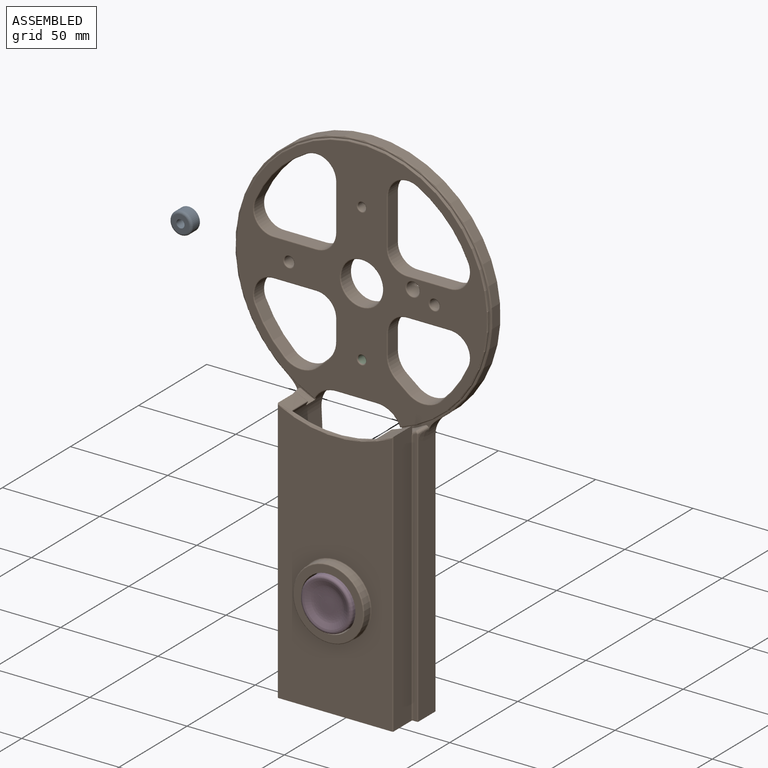
[diagram: assembled view]
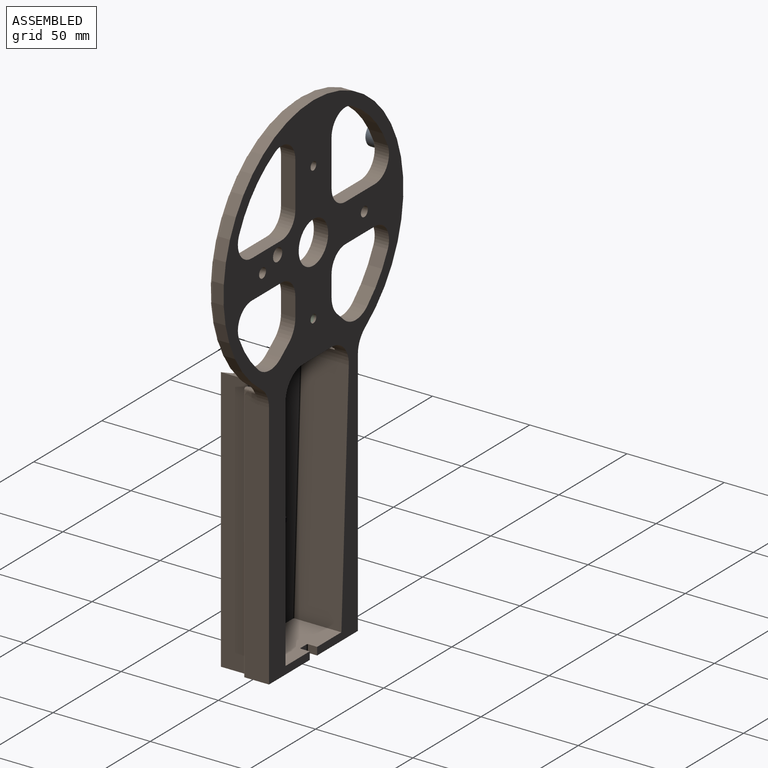
[diagram: assembled view, second angle]
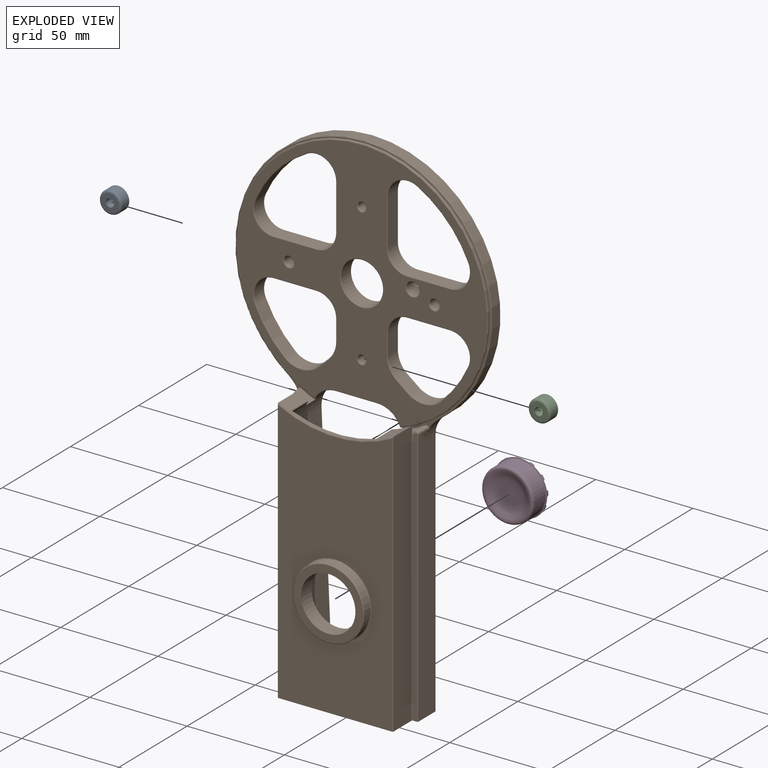
[diagram: exploded view]
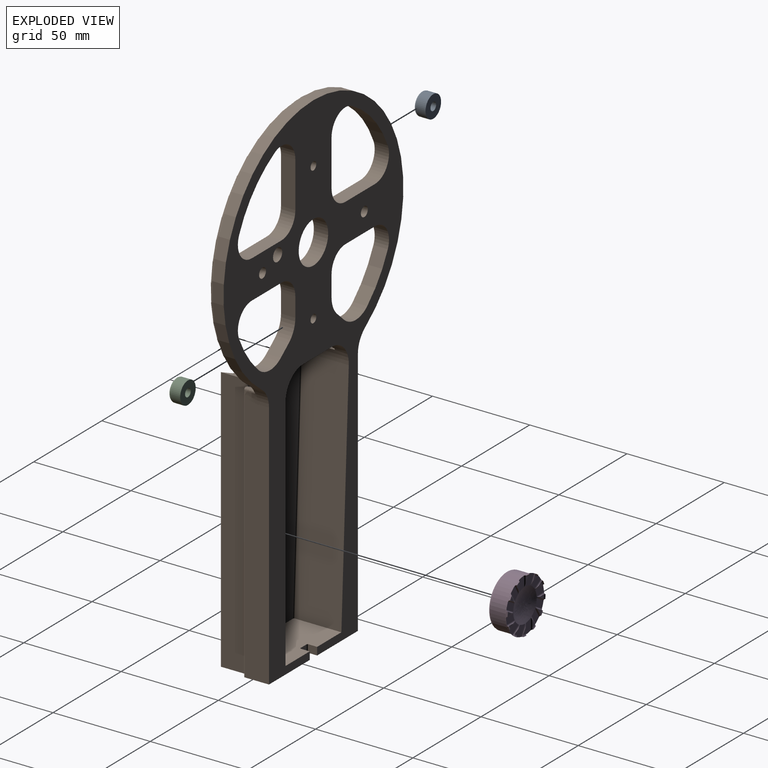
[diagram: exploded view, second angle]
ASSEMBLY  parts=4 mates=3
PART A: 5 faces, bbox 12.4x6.1x12.4 mm
  f0: cylinder r=2.1mm len=6.1mm, axis (0,1,0), area 80.3mm2, adj f2,f3
  f1: cylinder r=5.71mm len=11.43mm, axis (0,1,0), area 173.3mm2, adj f3,f4
  f2: plane 8.89x8.89mm, normal (0,-1,0), area 48.3mm2, adj f0,f4
  f3: plane 11.43x11.43mm, normal (0,1,0), area 88.8mm2, adj f0,f1
  f4: torus R=4.45mm, axis (0,-1,0), area 65.8mm2, adj f1,f2
PART B: 146 faces, bbox 143.3x32.5x264.9 mm
  f0: bspline ~10.99x7.91mm, area 2.4mm2, adj f93,f133,f135
  f1: bspline ~18.82x13.73mm, area 0.8mm2, adj f60,f82,f129
  f2: plane 65.28x27.05mm, normal (0,0,-1), area 1655.2mm2, adj f7,f12,f47,f48,f55,f56,f57,f58
  f3: plane 128.78x125.61mm, normal (0,-1,0), area 6411.4mm2, adj f83,f84,f85,f86,f94,f95,f96,f97
  f4: cylinder r=66.04mm len=132.08mm, axis (0,1,0), area 1950.6mm2, adj f48,f82,f128,f131
  f5: cylinder r=12.7mm len=24mm, axis (0,1,0), area 223.1mm2, adj f10,f11,f48,f51,f53,f59,f60,f74
  f6: cylinder r=12.7mm len=24mm, axis (0,1,0), area 267.6mm2, adj f8,f48,f49,f53,f54,f59,f60,f69
  f7: plane 136.07x58.37mm, normal (0,-1,0), area 6554.8mm2, adj f2,f78,f90,f91,f92
  f8: plane 6.21x4.86mm, normal (0,1,0), area 12.5mm2, adj f6,f49,f56,f67,f69,f145
  f9: cylinder r=63.5mm len=59.39mm, axis (0,1,0), area 292.6mm2, adj f56,f58,f67,f69,f71,f73,f75,f76
  f10: cylinder r=66.04mm len=11.81mm, axis (0,1,0), area 78.1mm2, adj f5,f11,f60,f134,f135,f138,f139
  f11: plane 10.75x6.6mm, normal (0,1,0), area 22.6mm2, adj f5,f10,f58,f76,f77,f139
  f12: plane 130.85x12.45mm, normal (-1,0,0), area 1606mm2, adj f2,f48,f89,f128,f129
  f13: cylinder r=10.16mm len=14.97mm, axis (0,1,0), area 149.1mm2, adj f14,f37,f48,f103
  f14: plane 23.63x7.11mm, normal (-1,0,0), area 168.1mm2, adj f13,f15,f48,f101
  f15: cylinder r=10.16mm len=10.16mm, axis (0,1,0), area 113.5mm2, adj f14,f16,f48,f100
  f16: plane 21.86x7.11mm, normal (0,0,1), area 155.5mm2, adj f15,f17,f48,f102
  f17: cylinder r=10.16mm len=14.26mm, axis (0,1,0), area 143.5mm2, adj f16,f37,f48,f104
  f18: cylinder r=10.16mm len=10.16mm, axis (0,1,0), area 113.5mm2, adj f19,f38,f48,f110
  f19: plane 23.63x7.11mm, normal (1,0,0), area 168.1mm2, adj f18,f20,f48,f108
  f20: cylinder r=10.16mm len=14.97mm, axis (0,1,0), area 149.1mm2, adj f19,f21,f48,f106
  f21: cylinder r=59.69mm len=28.48mm, axis (0,1,0), area 281.1mm2, adj f20,f22,f48,f107
  f22: cylinder r=10.16mm len=14.26mm, axis (0,1,0), area 143.5mm2, adj f21,f38,f48,f109
  f23: cylinder r=59.69mm len=19.85mm, axis (0,1,0), area 174.9mm2, adj f24,f39,f48,f117
  f24: cylinder r=12.7mm len=16.45mm, axis (0,1,0), area 127.3mm2, adj f23,f25,f48,f115
  f25: plane 7.11x5.81mm, normal (0.62,0,0.79), area 52.6mm2, adj f24,f26,f48,f113
  f26: cylinder r=12.7mm len=9.98mm, axis (0,1,0), area 81.7mm2, adj f25,f27,f48,f112
  f27: plane 10.03x7.11mm, normal (1,0,0), area 71.4mm2, adj f26,f28,f48,f114
  f28: cylinder r=10.16mm len=10.16mm, axis (0,1,0), area 113.5mm2, adj f27,f29,f48,f116
  f29: plane 21.86x7.11mm, normal (0,0,-1), area 155.5mm2, adj f28,f39,f48,f118
  f30: cylinder r=12.7mm len=9.37mm, axis (0,1,0), area 75mm2, adj f31,f40,f48,f126
  f31: plane 7.11x5.08mm, normal (-0.67,0,0.74), area 49mm2, adj f30,f32,f48,f124
  f32: cylinder r=12.7mm len=16.97mm, axis (0,1,0), area 132.2mm2, adj f31,f33,f48,f122
  f33: cylinder r=59.69mm len=20.68mm, axis (0,1,0), area 183.7mm2, adj f32,f34,f48,f120
  f34: cylinder r=10.16mm len=14.26mm, axis (0,1,0), area 143.5mm2, adj f33,f35,f48,f121
  f35: plane 21.86x7.11mm, normal (0,0,-1), area 155.5mm2, adj f34,f36,f48,f123
  f36: cylinder r=10.16mm len=10.16mm, axis (0,1,0), area 113.5mm2, adj f35,f40,f48,f125
  f37: cylinder r=59.69mm len=28.48mm, axis (0,1,0), area 281.1mm2, adj f13,f17,f48,f105
  f38: plane 21.86x7.11mm, normal (0,0,1), area 155.5mm2, adj f18,f22,f48,f111
  f39: cylinder r=10.16mm len=14.26mm, axis (0,1,0), area 143.5mm2, adj f23,f29,f48,f119
  f40: plane 10.61x7.11mm, normal (-1,0,0), area 75.4mm2, adj f30,f36,f48,f127
  f41: cylinder r=10.82mm len=21.64mm, axis (0,1,0), area 483.6mm2, adj f48,f99
  f42: cylinder r=2.1mm len=7.11mm, axis (0,1,0), area 93.6mm2, adj f48,f98
  f43: cylinder r=2.1mm len=7.11mm, axis (0,1,0), area 93.6mm2, adj f48,f97
  f44: cylinder r=2.54mm len=7.11mm, axis (0,1,0), area 113.5mm2, adj f48,f96
  f45: cylinder r=2.54mm len=7.11mm, axis (0,1,0), area 113.5mm2, adj f48,f95
  f46: cylinder r=3.37mm len=7.11mm, axis (0,1,0), area 150.4mm2, adj f48,f94
  f47: plane 130.85x12.45mm, normal (1,0,0), area 1606mm2, adj f2,f48,f93,f131,f133
  f48: plane 259.08x132.08mm, normal (0,1,0), area 10411.9mm2, adj f2,f4,f5,f6,f12,f13,f14,f15
  f49: cylinder r=66.04mm len=6.99mm, axis (0,1,0), area 44.3mm2, adj f6,f8,f60,f140,f142,f144,f145
  f50: plane 129.46x45.49mm, normal (0,1,0), area 4799.2mm2, adj f52,f64,f68,f70,f72,f73,f74
  f51: plane 122.59x24mm, normal (-1,0,0), area 2942.6mm2, adj f5,f48,f52,f72
  f52: plane 41.07x24.52mm, normal (0,0,1), area 978.7mm2, adj f48,f50,f51,f54,f61,f62,f63,f68
  f53: plane 21.11x7.11mm, normal (0,0,-1), area 150.1mm2, adj f5,f6,f48,f83
  f54: plane 122.05x24mm, normal (1,0,0.04), area 2932.5mm2, adj f6,f48,f52,f68
  f55: plane 133.85x1.93mm, normal (0,-1,0), area 257.5mm2, adj f2,f88,f89,f141,f144
  f56: plane 137.05x13.73mm, normal (-1,0,0), area 1793.1mm2, adj f2,f8,f9,f67,f88,f92,f145
  f57: plane 133.85x1.93mm, normal (0,-1,0), area 257.5mm2, adj f2,f87,f93,f136,f138
  f58: plane 137.05x13.73mm, normal (1,0,0), area 1793.1mm2, adj f2,f9,f11,f76,f87,f90,f139
  f59: cylinder r=64.9mm len=129.79mm, axis (0,-1,0), area 276.5mm2, adj f5,f6,f60,f86
  f60: plane 131.24x128.64mm, normal (0,-1,0), area 259mm2, adj f1,f5,f6,f10,f49,f59,f82,f129
  f61: plane 4.57x3.99mm, normal (1,0,0), area 18.2mm2, adj f2,f48,f52,f80
  f62: plane 4.57x3.99mm, normal (-1,0,0), area 18.2mm2, adj f2,f48,f52,f81
  f63: plane 4.44x3.99mm, normal (0,1,0), area 17.7mm2, adj f2,f52,f80,f81
  f64: cylinder r=13.97mm len=27.94mm, axis (0,-1,0), area 668.9mm2, adj f50,f66
  f65: cylinder r=18.3mm len=36.6mm, axis (0,1,0), area 467.3mm2, adj f78,f79
  f66: plane 35.58x35.58mm, normal (0,-1,0), area 381.3mm2, adj f64,f79
  f67: torus R=64.01mm, axis (0,-1,0), area 5mm2, adj f8,f9,f56,f69
  f68: cylinder r=0.51mm len=122.1mm, axis (0.04,0,-1), area 97.5mm2, adj f50,f52,f54,f70
  f69: cylinder r=0.51mm len=11.05mm, axis (0,-1,0), area 9.7mm2, adj f6,f8,f9,f67,f71
  f70: torus R=12.19mm, axis (0,-1,0), area 6.3mm2, adj f6,f50,f68,f71
  f71: bspline ~1.21x1.19mm, area 0.9mm2, adj f9,f69,f70,f73
  f72: cylinder r=0.51mm len=122.59mm, axis (0,0,1), area 97.8mm2, adj f50,f51,f52,f74
  f73: torus R=64.01mm, axis (0,-1,0), area 34.2mm2, adj f9,f50,f71,f75
  f74: torus R=12.19mm, axis (0,-1,0), area 4.4mm2, adj f5,f50,f72,f75
  f75: bspline ~1.24x1.13mm, area 0.9mm2, adj f9,f73,f74,f77
  f76: torus R=64.01mm, axis (0,-1,0), area 8.8mm2, adj f9,f11,f58,f77
  f77: cylinder r=0.51mm len=11.05mm, axis (0,1,0), area 9.4mm2, adj f5,f9,f11,f75,f76
  f78: torus R=18.81mm, axis (0,-1,0), area 92.7mm2, adj f7,f65
  f79: torus R=17.79mm, axis (0,-1,0), area 90.8mm2, adj f65,f66
  f80: cylinder r=0.51mm len=3.99mm, axis (0,0,1), area 3.2mm2, adj f2,f52,f61,f63
  f81: cylinder r=0.51mm len=3.99mm, axis (0,0,-1), area 3.2mm2, adj f2,f52,f62,f63
  f82: torus R=65.53mm, axis (0,-1,0), area 261.6mm2, adj f1,f4,f60,f129,f132,f133
  f83: cylinder r=0.51mm len=21.11mm, axis (1,0,0), area 16.8mm2, adj f3,f53,f84,f85
  f84: torus R=13.21mm, axis (0,-1,0), area 12.1mm2, adj f3,f5,f83,f86
  f85: torus R=13.21mm, axis (0,-1,0), area 10.7mm2, adj f3,f6,f83,f86
  f86: torus R=64.39mm, axis (0,-1,0), area 288.4mm2, adj f3,f59,f84,f85
  f87: cylinder r=0.51mm len=132.89mm, axis (0,0,1), area 105.7mm2, adj f2,f57,f58,f139
  f88: cylinder r=0.51mm len=132.89mm, axis (0,0,-1), area 105.7mm2, adj f2,f55,f56,f145
  f89: cylinder r=0.51mm len=133.5mm, axis (0,0,-1), area 106.4mm2, adj f2,f12,f55,f130,f141
  f90: cylinder r=0.51mm len=136.91mm, axis (0,0,1), area 108.9mm2, adj f2,f7,f58,f91
  f91: torus R=64.01mm, axis (0,-1,0), area 48.8mm2, adj f7,f9,f90,f92
  f92: cylinder r=0.51mm len=136.91mm, axis (0,0,-1), area 108.9mm2, adj f2,f7,f56,f91
  f93: cylinder r=0.51mm len=133.5mm, axis (0,0,1), area 106.4mm2, adj f0,f2,f47,f57,f136
  f94: torus R=3.87mm, axis (0,-1,0), area 17.8mm2, adj f3,f46
  f95: torus R=3.05mm, axis (0,-1,0), area 13.7mm2, adj f3,f45
  f96: torus R=3.05mm, axis (0,-1,0), area 13.7mm2, adj f3,f44
  f97: torus R=2.6mm, axis (0,-1,0), area 11.4mm2, adj f3,f43
  f98: torus R=2.6mm, axis (0,-1,0), area 11.4mm2, adj f3,f42
  f99: torus R=11.33mm, axis (0,-1,0), area 55.2mm2, adj f3,f41
  f100: torus R=10.67mm, axis (0,-1,0), area 13mm2, adj f3,f15,f101,f102
  f101: cylinder r=0.51mm len=23.63mm, axis (0,0,1), area 18.9mm2, adj f3,f14,f100,f103
  f102: cylinder r=0.51mm len=21.86mm, axis (1,0,0), area 17.4mm2, adj f3,f16,f100,f104
  f103: torus R=10.67mm, axis (0,-1,0), area 17mm2, adj f3,f13,f101,f105
  f104: torus R=10.67mm, axis (0,-1,0), area 16.4mm2, adj f3,f17,f102,f105
  f105: torus R=60.2mm, axis (0,-1,0), area 31.6mm2, adj f3,f37,f103,f104
  f106: torus R=10.67mm, axis (0,-1,0), area 17mm2, adj f3,f20,f107,f108
  f107: torus R=60.2mm, axis (0,-1,0), area 31.6mm2, adj f3,f21,f106,f109
  f108: cylinder r=0.51mm len=23.63mm, axis (0,0,-1), area 18.9mm2, adj f3,f19,f106,f110
  f109: torus R=10.67mm, axis (0,-1,0), area 16.4mm2, adj f3,f22,f107,f111
  f110: torus R=10.67mm, axis (0,-1,0), area 13mm2, adj f3,f18,f108,f111
  f111: cylinder r=0.51mm len=21.86mm, axis (1,0,0), area 17.4mm2, adj f3,f38,f109,f110
  f112: torus R=13.21mm, axis (0,-1,0), area 9.3mm2, adj f3,f26,f113,f114
  f113: cylinder r=0.51mm len=6.12mm, axis (0.79,0,-0.62), area 5.9mm2, adj f3,f25,f112,f115
  f114: cylinder r=0.51mm len=10.03mm, axis (0,0,-1), area 8mm2, adj f3,f27,f112,f116
  f115: torus R=13.21mm, axis (0,-1,0), area 14.5mm2, adj f3,f24,f113,f117
  f116: torus R=10.67mm, axis (0,-1,0), area 13mm2, adj f3,f28,f114,f118
  f117: torus R=60.2mm, axis (0,-1,0), area 19.7mm2, adj f3,f23,f115,f119
  f118: cylinder r=0.51mm len=21.86mm, axis (-1,0,0), area 17.4mm2, adj f3,f29,f116,f119
  f119: torus R=10.67mm, axis (0,-1,0), area 16.4mm2, adj f3,f39,f117,f118
  f120: torus R=60.2mm, axis (0,-1,0), area 20.7mm2, adj f3,f33,f121,f122
  f121: torus R=10.67mm, axis (0,-1,0), area 16.4mm2, adj f3,f34,f120,f123
  f122: torus R=13.21mm, axis (0,-1,0), area 15mm2, adj f3,f32,f120,f124
  f123: cylinder r=0.51mm len=21.86mm, axis (-1,0,0), area 17.4mm2, adj f3,f35,f121,f125
  f124: cylinder r=0.51mm len=5.43mm, axis (0.74,0,0.67), area 5.5mm2, adj f3,f31,f122,f126
  f125: torus R=10.67mm, axis (0,-1,0), area 13mm2, adj f3,f36,f123,f127
  f126: torus R=13.21mm, axis (0,-1,0), area 8.5mm2, adj f3,f30,f124,f127
  f127: cylinder r=0.51mm len=10.61mm, axis (0,0,1), area 8.5mm2, adj f3,f40,f125,f126
  f128: cylinder r=12.7mm len=10.38mm, axis (0,1,0), area 71mm2, adj f4,f12,f48,f129
  f129: bspline ~11.32x8.76mm, area 29.3mm2, adj f1,f12,f60,f82,f128,f130,f140
  f130: bspline ~10.99x7.91mm, area 2.4mm2, adj f89,f129,f142
  f131: cylinder r=12.7mm len=10.38mm, axis (0,1,0), area 71mm2, adj f4,f47,f48,f133
  f132: bspline ~18.1x13.41mm, area 0.8mm2, adj f60,f82,f133
  f133: bspline ~11.32x8.76mm, area 29.3mm2, adj f0,f47,f60,f82,f131,f132,f134
  f134: bspline ~5.5x3.91mm, area 12.8mm2, adj f10,f60,f133,f135
  f135: bspline ~2.99x2.84mm, area 4.9mm2, adj f0,f10,f134,f136,f137
  f136: bspline ~0.94x0.61mm, area 0.3mm2, adj f57,f93,f135,f137
  f137: bspline ~1.54x1.27mm, area 0.6mm2, adj f135,f136,f138
  f138: torus R=67.31mm, axis (0,-1,0), area 3.5mm2, adj f10,f57,f137,f139
  f139: bspline ~2.39x2.12mm, area 2.3mm2, adj f10,f11,f58,f87,f138
  f140: bspline ~6.99x4.14mm, area 12.8mm2, adj f49,f60,f129,f142
  f141: bspline ~0.94x0.61mm, area 0.3mm2, adj f55,f89,f142,f143
  f142: bspline ~3x2.86mm, area 4.9mm2, adj f49,f130,f140,f141,f143
  f143: bspline ~1.64x1.27mm, area 0.6mm2, adj f141,f142,f144
  f144: torus R=67.31mm, axis (0,-1,0), area 3.5mm2, adj f49,f55,f143,f145
  f145: bspline ~2.39x2.12mm, area 2.3mm2, adj f8,f49,f56,f88,f144
PART C: same geometry as A
PART D: 68 faces, bbox 30.3x10.5x30.3 mm
  f0: torus R=13.72mm, axis (0,1,0), area 34.6mm2, adj f1,f8,f9,f11,f12,f13,f15,f17
  f1: cylinder r=13.97mm len=3.38mm, axis (0,1,0), area 2.1mm2, adj f0,f3,f12,f67
  f2: revolved ~27.88x27.88mm, area 310mm2, adj f3,f9,f10,f11,f12,f13,f14,f15
  f3: revolved ~5x3.7mm, area 5.5mm2, adj f1,f2,f12
  f4: revolved ~23.89x23.89mm, area 468.1mm2, adj f5
  f5: torus R=12.07mm, axis (0,1,0), area 169.1mm2, adj f4,f6
  f6: cylinder r=13.34mm len=26.68mm, axis (0,1,0), area 660mm2, adj f5,f7
  f7: torus R=13.6mm, axis (0,1,0), area 33.7mm2, adj f6,f8
  f8: plane 27.43x27.43mm, normal (0,1,0), area 10.4mm2, adj f0,f7
  f9: cylinder r=13.97mm len=3.73mm, axis (0,1,0), area 2.1mm2, adj f0,f2,f13,f18
  f10: plane 0.61x0.21mm, normal (0,0,1), area 0mm2, adj f2,f18
  f11: plane 6.39x3.31mm, normal (0,-1,0), area 18.3mm2, adj f0,f2,f12,f13
  f12: cylinder r=0.81mm len=5.79mm, axis (1,0,0), area 4.8mm2, adj f0,f1,f2,f3,f11,f14
  f13: cylinder r=0.81mm len=5.4mm, axis (1,0,0), area 4.4mm2, adj f0,f2,f9,f11
  f14: plane 0.54x0.32mm, normal (-0.5,0,0.87), area 0mm2, adj f2,f12
  f15: cylinder r=13.97mm len=3.07mm, axis (0,1,0), area 2.1mm2, adj f0,f2,f19,f23
  f16: plane 0.54x0.32mm, normal (0.5,0,0.87), area 0mm2, adj f2,f23
  f17: plane 6.06x5.79mm, normal (0,-1,0), area 18.3mm2, adj f0,f2,f18,f19
  f18: cylinder r=0.81mm len=5.42mm, axis (0.87,0,-0.5), area 4.8mm2, adj f0,f2,f9,f10,f17
  f19: cylinder r=0.81mm len=5.08mm, axis (0.87,0,-0.5), area 4.4mm2, adj f0,f2,f15,f17
  f20: cylinder r=13.97mm len=3.38mm, axis (0,1,0), area 2.1mm2, adj f0,f2,f24,f28
  f21: plane 0.54x0.32mm, normal (0.87,0,0.5), area 0mm2, adj f2,f28
  f22: plane 7.18x5.26mm, normal (0,-1,0), area 18.3mm2, adj f0,f2,f23,f24
  f23: cylinder r=0.81mm len=5.42mm, axis (0.5,0,-0.87), area 4.8mm2, adj f0,f2,f15,f16,f22
  f24: cylinder r=0.81mm len=5.08mm, axis (0.5,0,-0.87), area 4.4mm2, adj f0,f2,f20,f22
  f25: cylinder r=13.97mm len=3.73mm, axis (0,1,0), area 2.1mm2, adj f0,f2,f29,f33
  f26: plane 0.61x0.21mm, normal (1,0,0), area 0mm2, adj f2,f33
  f27: plane 6.39x3.31mm, normal (0,-1,0), area 18.3mm2, adj f0,f2,f28,f29
  f28: cylinder r=0.81mm len=5.79mm, axis (0,0,-1), area 4.8mm2, adj f0,f2,f20,f21,f27
  f29: cylinder r=0.81mm len=5.4mm, axis (0,0,-1), area 4.4mm2, adj f0,f2,f25,f27
  f30: cylinder r=13.97mm len=3.07mm, axis (0,1,0), area 2.1mm2, adj f0,f2,f34,f38
  f31: plane 0.54x0.32mm, normal (0.87,0,-0.5), area 0mm2, adj f2,f38
  f32: plane 6.06x5.79mm, normal (0,-1,0), area 18.3mm2, adj f0,f2,f33,f34
  f33: cylinder r=0.81mm len=5.42mm, axis (-0.5,0,-0.87), area 4.8mm2, adj f0,f2,f25,f26,f32
  f34: cylinder r=0.81mm len=5.08mm, axis (-0.5,0,-0.87), area 4.4mm2, adj f0,f2,f30,f32
  f35: plane 0.54x0.32mm, normal (0.5,0,-0.87), area 0mm2, adj f2,f43
  f36: cylinder r=13.97mm len=3.38mm, axis (0,1,0), area 2.1mm2, adj f0,f2,f39,f43
  f37: plane 7.18x5.26mm, normal (0,-1,0), area 18.3mm2, adj f0,f2,f38,f39
  f38: cylinder r=0.81mm len=5.42mm, axis (-0.87,0,-0.5), area 4.8mm2, adj f0,f2,f30,f31,f37
  f39: cylinder r=0.81mm len=5.08mm, axis (-0.87,0,-0.5), area 4.4mm2, adj f0,f2,f36,f37
  f40: cylinder r=13.97mm len=3.73mm, axis (0,1,0), area 2.1mm2, adj f0,f2,f44,f48
  f41: plane 0.61x0.21mm, normal (0,0,-1), area 0mm2, adj f2,f48
  f42: plane 6.39x3.31mm, normal (0,-1,0), area 18.3mm2, adj f0,f2,f43,f44
  f43: cylinder r=0.81mm len=5.79mm, axis (-1,0,0), area 4.8mm2, adj f0,f2,f35,f36,f42
  f44: cylinder r=0.81mm len=5.4mm, axis (-1,0,0), area 4.4mm2, adj f0,f2,f40,f42
  f45: cylinder r=13.97mm len=3.07mm, axis (0,1,0), area 2.1mm2, adj f0,f2,f49,f53
  f46: plane 0.54x0.32mm, normal (-0.5,0,-0.87), area 0mm2, adj f2,f53
  f47: plane 6.06x5.79mm, normal (0,-1,0), area 18.3mm2, adj f0,f2,f48,f49
  f48: cylinder r=0.81mm len=5.42mm, axis (-0.87,0,0.5), area 4.8mm2, adj f0,f2,f40,f41,f47
  f49: cylinder r=0.81mm len=5.08mm, axis (-0.87,0,0.5), area 4.4mm2, adj f0,f2,f45,f47
  f50: cylinder r=13.97mm len=3.38mm, axis (0,1,0), area 2.1mm2, adj f0,f2,f54,f58
  f51: plane 0.54x0.32mm, normal (-0.87,0,-0.5), area 0mm2, adj f2,f58
  f52: plane 7.18x5.26mm, normal (0,-1,0), area 18.3mm2, adj f0,f2,f53,f54
  f53: cylinder r=0.81mm len=5.42mm, axis (-0.5,0,0.87), area 4.8mm2, adj f0,f2,f45,f46,f52
  f54: cylinder r=0.81mm len=5.08mm, axis (-0.5,0,0.87), area 4.4mm2, adj f0,f2,f50,f52
  f55: cylinder r=13.97mm len=3.73mm, axis (0,1,0), area 2.1mm2, adj f0,f2,f59,f63
  f56: plane 0.61x0.21mm, normal (-1,0,0), area 0mm2, adj f2,f63
  f57: plane 6.39x3.31mm, normal (0,-1,0), area 18.3mm2, adj f0,f2,f58,f59
  f58: cylinder r=0.81mm len=5.79mm, axis (0,0,1), area 4.8mm2, adj f0,f2,f50,f51,f57
  f59: cylinder r=0.81mm len=5.4mm, axis (0,0,1), area 4.4mm2, adj f0,f2,f55,f57
  f60: plane 0.54x0.32mm, normal (-0.87,0,0.5), area 0mm2, adj f2,f66
  f61: cylinder r=13.97mm len=3.07mm, axis (0,1,0), area 2.1mm2, adj f0,f2,f64,f66
  f62: plane 6.06x5.79mm, normal (0,-1,0), area 18.3mm2, adj f0,f2,f63,f64
  f63: cylinder r=0.81mm len=5.42mm, axis (0.5,0,0.87), area 4.8mm2, adj f0,f2,f55,f56,f62
  f64: cylinder r=0.81mm len=5.08mm, axis (0.5,0,0.87), area 4.4mm2, adj f0,f2,f61,f62
  f65: plane 7.18x5.26mm, normal (0,-1,0), area 18.3mm2, adj f0,f2,f66,f67
  f66: cylinder r=0.81mm len=5.42mm, axis (0.87,0,0.5), area 4.8mm2, adj f0,f2,f60,f61,f65
  f67: cylinder r=0.81mm len=5.08mm, axis (0.87,0,0.5), area 4.4mm2, adj f0,f1,f2,f65
PLACE A t=(-129.98,-5.91,99.12)mm
PLACE B t=(-49.77,14.05,85.85)mm
PLACE C t=(-49.77,13.04,50.35)mm
PLACE D rot(axis=(1,0,0),180deg) t=(-49.77,-11.72,-53.67)mm
MATE cylindrical C.f0 <-> B.f43  axis (0,-1,0) through (-49.77,6.94,50.35)mm
MATE planar D.f1 <-> B.f50  axis (0,-1,0) through (-49.77,-10.46,-53.67)mm
MATE cylindrical D.f1 <-> B.f64  axis (0,-1,0) through (-49.77,-19.85,-53.67)mm
